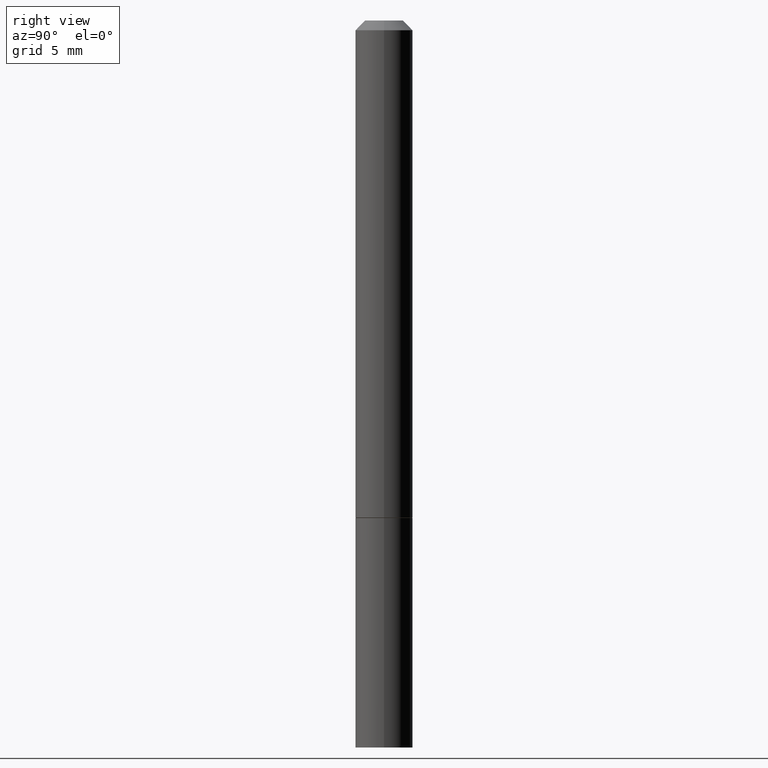
[diagram: clean part render]
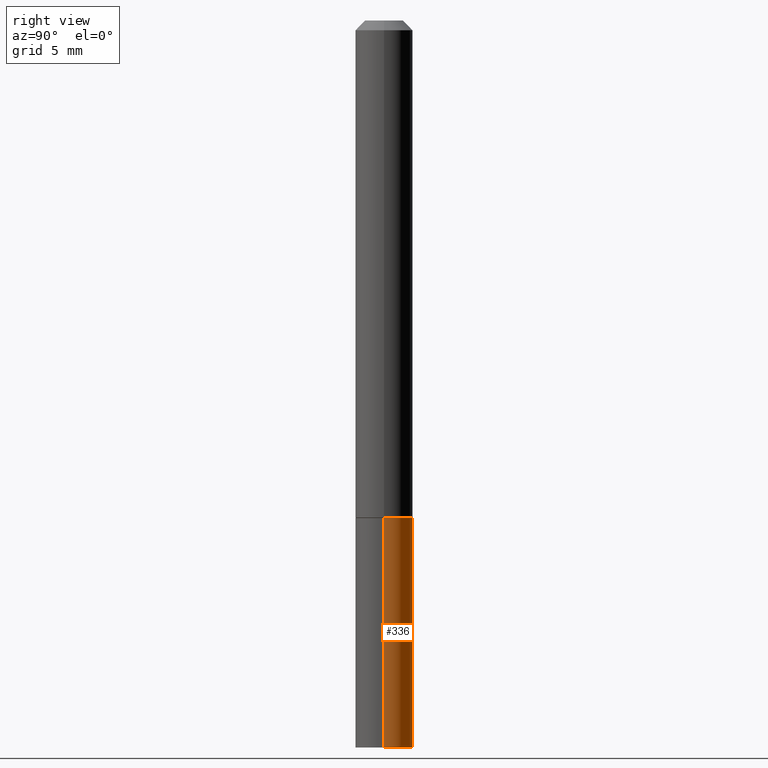
[diagram: same view with one face highlighted and labeled with its STEP entity id]
A machine part, right view. The second image highlights one B-rep face of the part: STEP entity #336.
In plain terms, the highlighted cylindrical surface (edge-blend (fillet) strip) has radius 1.4999 mm, axis along (-0, 0, 1).
Its self-contained STEP definition (entity closure, byte-faithful):
#11 = VECTOR ( 'NONE', #103, 39.37007874015748143 ) ;
#23 = CARTESIAN_POINT ( 'NONE',  ( 0.05905000000000001914, -5.635949177160603791E-15, -1.496099999999999985 ) ) ;
#59 = VERTEX_POINT ( 'NONE', #23 ) ;
#63 = VERTEX_POINT ( 'NONE', #272 ) ;
#76 = VERTEX_POINT ( 'NONE', #269 ) ;
#82 = DIRECTION ( 'NONE',  ( -2.445468806185136877E-29, 3.491481338843145188E-15, 1.000000000000000000 ) ) ;
#90 = ORIENTED_EDGE ( 'NONE', *, *, #264, .F. ) ;
#91 = DIRECTION ( 'NONE',  ( -2.445468806185136597E-29, 3.491481338843145583E-15, 1.000000000000000000 ) ) ;
#93 = DIRECTION ( 'NONE',  ( -2.445468806185136597E-29, 3.491481338843145583E-15, 1.000000000000000000 ) ) ;
#96 = ORIENTED_EDGE ( 'NONE', *, *, #343, .T. ) ;
#103 = DIRECTION ( 'NONE',  ( -2.445468806185136877E-29, 3.491481338843145188E-15, 1.000000000000000000 ) ) ;
#109 = LINE ( 'NONE', #128, #322 ) ;
#110 = AXIS2_PLACEMENT_3D ( 'NONE', #169, #158, #220 ) ;
#112 = LINE ( 'NONE', #248, #11 ) ;
#115 = CARTESIAN_POINT ( 'NONE',  ( 3.658665880933582389E-29, -5.223605231043229660E-15, -1.496099999999999985 ) ) ;
#117 = DIRECTION ( 'NONE',  ( 1.000000000000000000, -6.982962677686266711E-15, 4.876176775795935793E-29 ) ) ;
#128 = CARTESIAN_POINT ( 'NONE',  ( 0.05905000000000001914, -4.123439461173741806E-16, 2.879382386107500921E-30 ) ) ;
#143 = CARTESIAN_POINT ( 'NONE',  ( 0.000000000000000000, 0.000000000000000000, 0.000000000000000000 ) ) ;
#158 = DIRECTION ( 'NONE',  ( -2.445468806185136597E-29, 3.491481338843145583E-15, 1.000000000000000000 ) ) ;
#159 = EDGE_CURVE ( 'NONE', #63, #76, #112, .T. ) ;
#163 = AXIS2_PLACEMENT_3D ( 'NONE', #115, #91, #176 ) ;
#169 = CARTESIAN_POINT ( 'NONE',  ( 2.503426416891723784E-29, -3.574229446573727613E-15, -1.023699999999999832 ) ) ;
#176 = DIRECTION ( 'NONE',  ( 1.000000000000000000, -6.982962677686270655E-15, 0.000000000000000000 ) ) ;
#205 = CYLINDRICAL_SURFACE ( 'NONE', #256, 0.05905000000000001914 ) ;
#220 = DIRECTION ( 'NONE',  ( 1.000000000000000000, -6.982962677686262766E-15, 0.000000000000000000 ) ) ;
#243 = EDGE_CURVE ( 'NONE', #323, #76, #363, .T. ) ;
#248 = CARTESIAN_POINT ( 'NONE',  ( -0.05905000000000001914, 4.195754854663392958E-16, -2.904631170795522943E-30 ) ) ;
#250 = CIRCLE ( 'NONE', #163, 0.05905000000000001914 ) ;
#256 = AXIS2_PLACEMENT_3D ( 'NONE', #143, #93, #117 ) ;
#260 = ORIENTED_EDGE ( 'NONE', *, *, #243, .F. ) ;
#264 = EDGE_CURVE ( 'NONE', #59, #323, #109, .T. ) ;
#269 = CARTESIAN_POINT ( 'NONE',  ( -0.05905000000000001914, -3.979341853342139538E-15, -1.023699999999999832 ) ) ;
#272 = CARTESIAN_POINT ( 'NONE',  ( -0.05905000000000001914, -3.979341853342139538E-15, -1.496099999999999985 ) ) ;
#291 = FACE_OUTER_BOUND ( 'NONE', #316, .T. ) ;
#316 = EDGE_LOOP ( 'NONE', ( #96, #348, #260, #90 ) ) ;
#322 = VECTOR ( 'NONE', #82, 39.37007874015748143 ) ;
#323 = VERTEX_POINT ( 'NONE', #324 ) ;
#324 = CARTESIAN_POINT ( 'NONE',  ( 0.05905000000000001914, -3.986573392691101744E-15, -1.023699999999999832 ) ) ;
#336 = ADVANCED_FACE ( 'NONE', ( #291 ), #205, .T. ) ;
#343 = EDGE_CURVE ( 'NONE', #59, #63, #250, .T. ) ;
#348 = ORIENTED_EDGE ( 'NONE', *, *, #159, .T. ) ;
#363 = CIRCLE ( 'NONE', #110, 0.05905000000000001914 ) ;